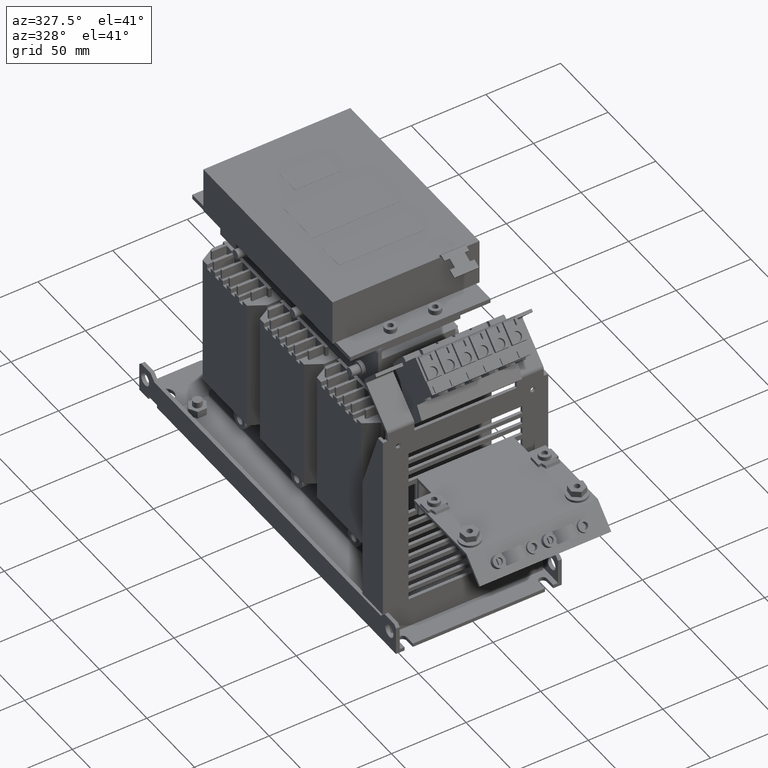
[diagram: clean part render]
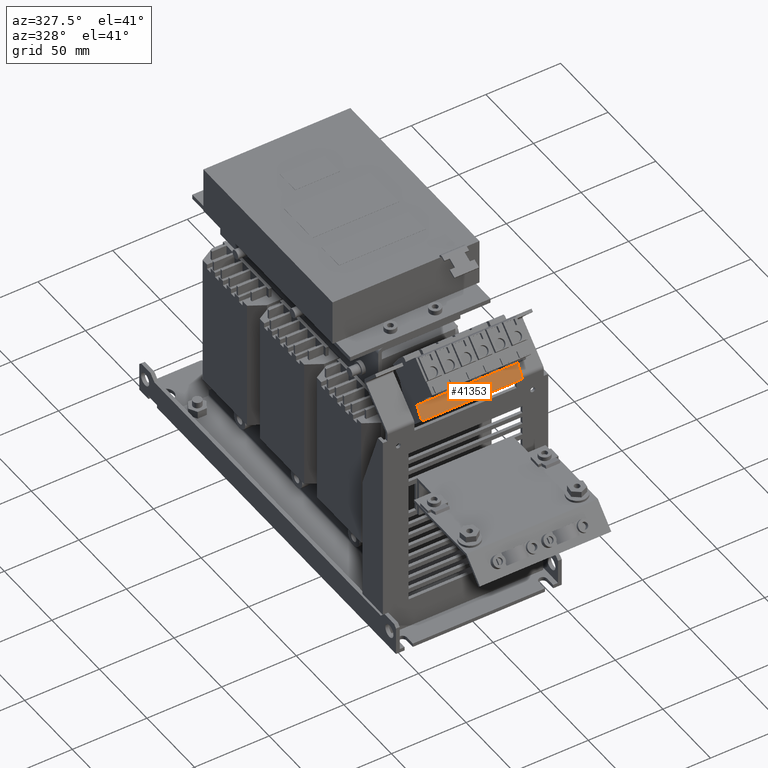
[diagram: same view with one face highlighted and labeled with its STEP entity id]
A machine part, auxiliary view. The second image highlights one B-rep face of the part: STEP entity #41353.
In plain terms, the highlighted planar face has unit normal (0, -0.8572, 0.515).
Its self-contained STEP definition (entity closure, byte-faithful):
#34893=DIRECTION('',(0.E0,-5.150380749100E-1,-8.571673007021E-1));
#34894=VECTOR('',#34893,9.674784753513E0);
#34895=CARTESIAN_POINT('',(3.375E1,-1.228681802899E2,1.646714789012E2));
#34896=LINE('',#34895,#34894);
#35573=DIRECTION('',(0.E0,-5.150380749100E-1,-8.571673007021E-1));
#35574=VECTOR('',#35573,9.674784753513E0);
#35575=CARTESIAN_POINT('',(-3.375E1,-1.228681802899E2,1.646714789012E2));
#35576=LINE('',#35575,#35574);
#36369=DIRECTION('',(-1.E0,0.E0,0.E0));
#36370=VECTOR('',#36369,6.75E1);
#36371=CARTESIAN_POINT('',(3.375E1,-1.228681802899E2,1.646714789012E2));
#36372=LINE('',#36371,#36370);
#36373=DIRECTION('',(-1.E0,0.E0,0.E0));
#36374=VECTOR('',#36373,6.75E1);
#36375=CARTESIAN_POINT('',(3.375E1,-1.278510628045E2,1.563785697692E2));
#36376=LINE('',#36375,#36374);
#37585=CARTESIAN_POINT('',(3.375E1,-1.228681802899E2,1.646714789012E2));
#37586=VERTEX_POINT('',#37585);
#37587=CARTESIAN_POINT('',(3.375E1,-1.278510628045E2,1.563785697692E2));
#37588=VERTEX_POINT('',#37587);
#37617=CARTESIAN_POINT('',(-3.375E1,-1.228681802899E2,1.646714789012E2));
#37618=VERTEX_POINT('',#37617);
#37619=CARTESIAN_POINT('',(-3.375E1,-1.278510628045E2,1.563785697692E2));
#37620=VERTEX_POINT('',#37619);
#41341=CARTESIAN_POINT('',(3.375E1,-1.228681802899E2,1.646714789012E2));
#41342=DIRECTION('',(0.E0,-8.571673007021E-1,5.150380749100E-1));
#41343=DIRECTION('',(0.E0,-5.150380749100E-1,-8.571673007021E-1));
#41344=AXIS2_PLACEMENT_3D('',#41341,#41342,#41343);
#41345=PLANE('',#41344);
#41346=ORIENTED_EDGE('',*,*,#39421,.T.);
#41348=ORIENTED_EDGE('',*,*,#41347,.T.);
#41349=ORIENTED_EDGE('',*,*,#40168,.F.);
#41350=ORIENTED_EDGE('',*,*,#41297,.F.);
#41351=EDGE_LOOP('',(#41346,#41348,#41349,#41350));
#41352=FACE_OUTER_BOUND('',#41351,.F.);
#41353=ADVANCED_FACE('',(#41352),#41345,.T.);
#39421=EDGE_CURVE('',#37586,#37588,#34896,.T.);
#40168=EDGE_CURVE('',#37618,#37620,#35576,.T.);
#41297=EDGE_CURVE('',#37586,#37618,#36372,.T.);
#41347=EDGE_CURVE('',#37588,#37620,#36376,.T.);